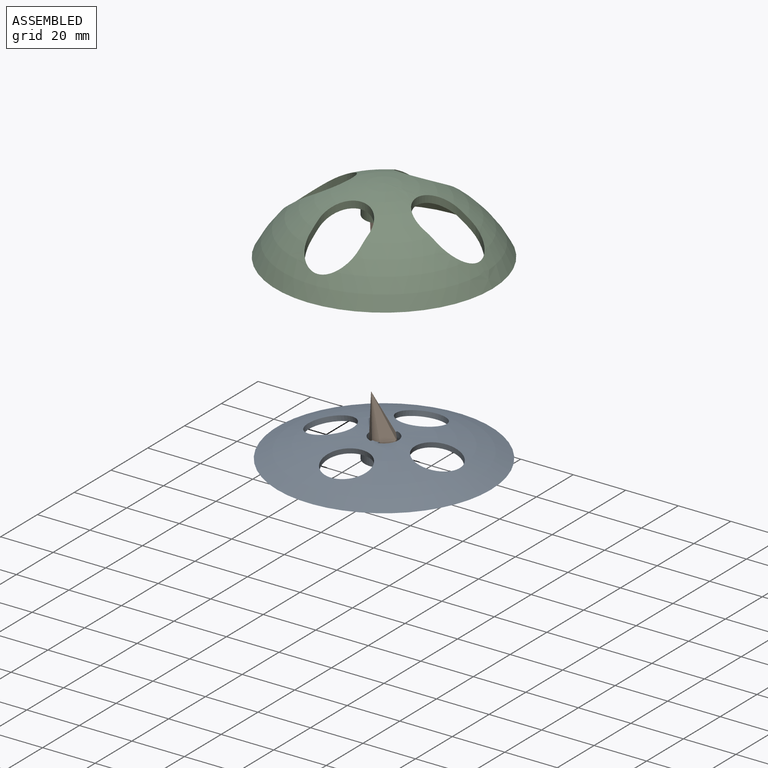
[diagram: assembled view]
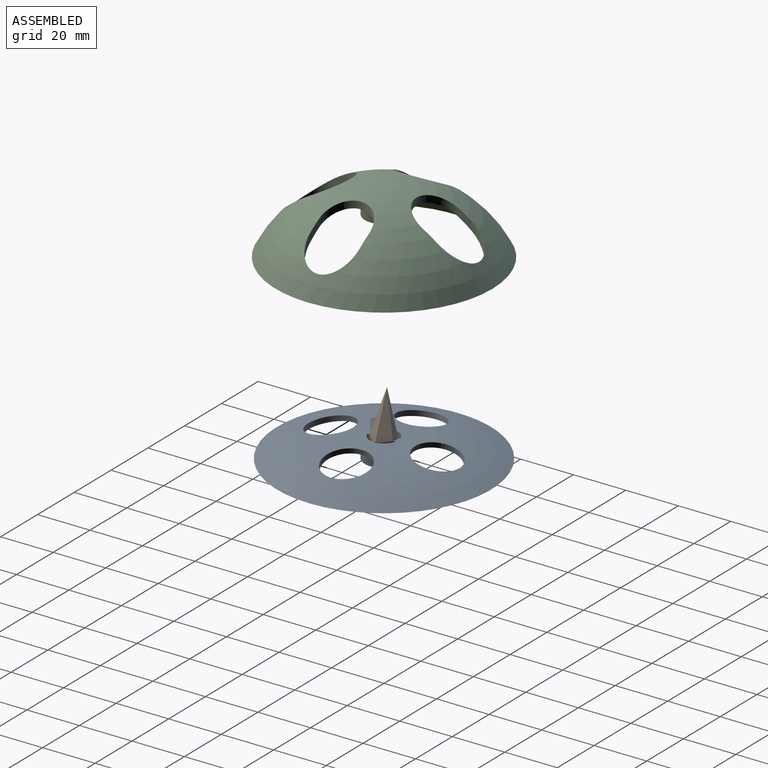
[diagram: assembled view, second angle]
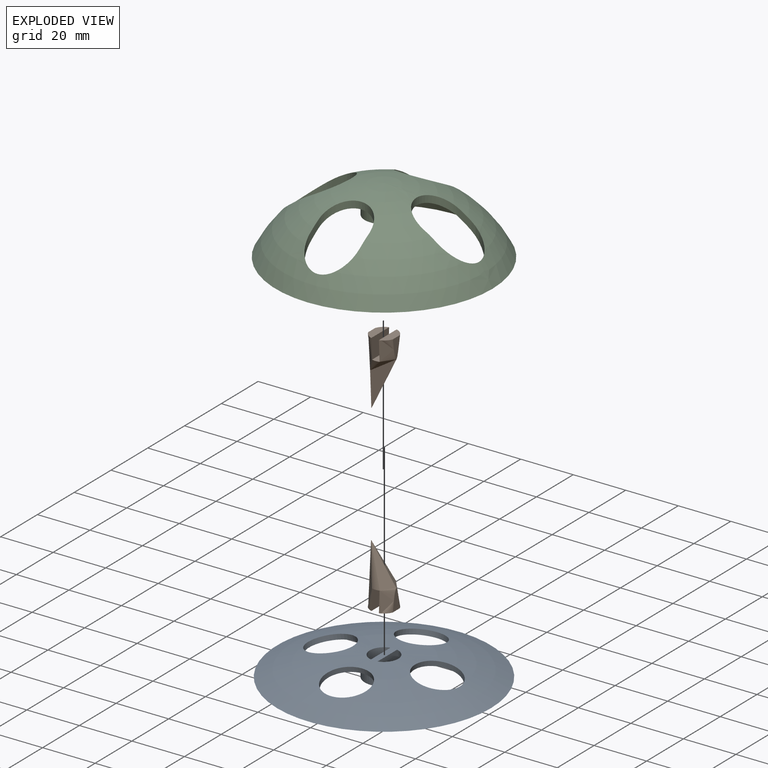
[diagram: exploded view]
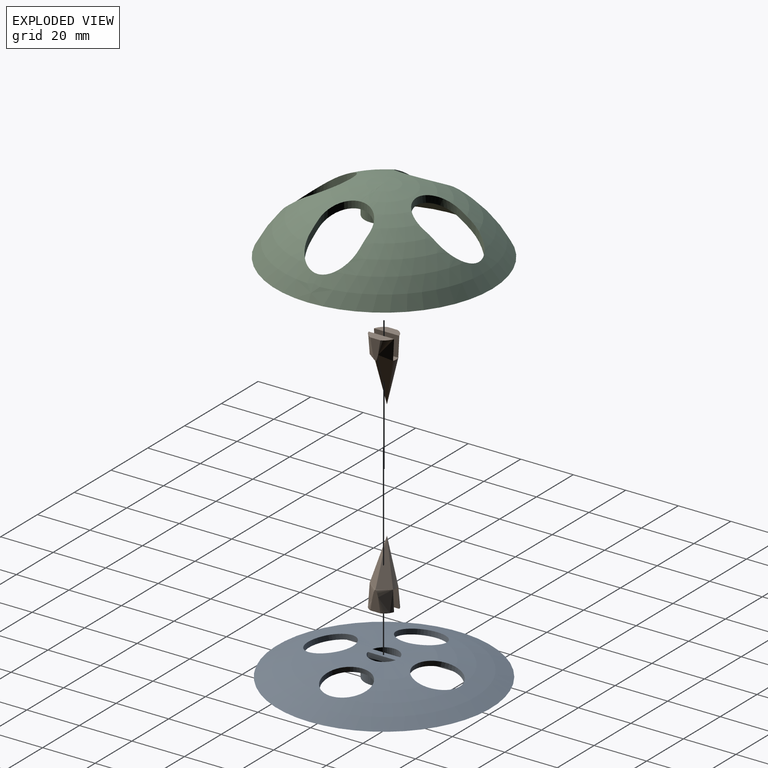
[diagram: exploded view, second angle]
ASSEMBLY  parts=3 mates=6
PART A: 14 faces, bbox 81.3x81.3x7.6 mm
  f0: torus R=5.44mm, axis (0,0,1), area 3032.6mm2, adj f2,f9,f10,f11,f12,f13
  f1: torus R=5.44mm, axis (0,0,1), area 4376.6mm2, adj f2,f3,f7,f10,f11,f12,f13
  f2: plane 81.28x81.28mm, normal (0,0,-1), area 1174.8mm2, adj f0,f1
  f3: plane 10.87x2.54mm, normal (0,0,1), area 27.4mm2, adj f1,f5,f6
  f4: plane 10.87x2.54mm, normal (0,0,-1), area 27.4mm2, adj f5,f6,f7
  f5: plane 10.57x1.91mm, normal (1,0,0), area 20.1mm2, adj f3,f4,f7
  f6: plane 10.57x1.91mm, normal (-1,0,0), area 20.1mm2, adj f3,f4,f7
  f7: cylinder r=5.44mm len=10.87mm, axis (0,0,-1), area 250.5mm2, adj f1,f4,f5,f6,f8
  f8: plane 14.68x14.68mm, normal (0,0,-1), area 76.5mm2, adj f7,f9
  f9: cylinder r=7.34mm len=14.68mm, axis (0,0,-1), area 262.6mm2, adj f0,f8
  f10: cylinder r=8.64mm len=17.36mm, axis (-0.17,0,-0.98), area 103.8mm2, adj f0,f1
  f11: cylinder r=8.64mm len=17.34mm, axis (0,-0.17,-0.98), area 103.6mm2, adj f0,f1
  f12: cylinder r=8.64mm len=17.37mm, axis (0.17,0,-0.98), area 103.8mm2, adj f0,f1
  f13: cylinder r=8.64mm len=17.37mm, axis (0,0.17,-0.98), area 103.8mm2, adj f0,f1
PART B: 15 faces, bbox 571.9x571.9x1274.9 mm
  f0: plane 9.35x2.87mm, normal (0,0,-1), area 26.4mm2, adj f2,f11,f13
  f1: plane 9.35x2.87mm, normal (0,0,1), area 26.4mm2, adj f2,f4,f8
  f2: torus R=901.65mm, axis (0,0,-1), area 2327.6mm2, adj f0,f1,f3,f4,f5,f6,f7,f8
  f3: plane 9.66x3.24mm, normal (0,0,1), area 24.7mm2, adj f2,f4,f5
  f4: plane 9.67x7.62mm, normal (1,0,0), area 70.6mm2, adj f1,f2,f3
  f5: plane 7.62x3.78mm, normal (-1,0,0), area 18.8mm2, adj f2,f3
  f6: plane 9.66x3.24mm, normal (0,0,1), area 24.7mm2, adj f2,f7,f8
  f7: plane 7.62x3.78mm, normal (1,0,0), area 18.8mm2, adj f2,f6
  f8: plane 9.67x7.62mm, normal (-1,0,0), area 70.6mm2, adj f1,f2,f6
  f9: plane 9.66x3.24mm, normal (0,0,-1), area 24.7mm2, adj f2,f10,f11
  f10: plane 7.62x3.78mm, normal (-1,0,0), area 18.8mm2, adj f2,f9
  f11: plane 9.67x7.62mm, normal (1,0,0), area 70.6mm2, adj f0,f2,f9
  f12: plane 9.66x3.24mm, normal (0,0,-1), area 24.7mm2, adj f2,f13,f14
  f13: plane 9.67x7.62mm, normal (-1,0,0), area 70.6mm2, adj f0,f2,f12
  f14: plane 7.62x3.78mm, normal (1,0,0), area 18.8mm2, adj f2,f12
PART C: 27 faces, bbox 82.7x82.7x25.6 mm
  f0: plane 6.48x4.91mm, normal (-1,0,0), area 14.8mm2, adj f1,f3,f12,f13
  f1: cylinder r=9.53mm len=19.05mm, axis (0,0,-1), area 82.7mm2, adj f0,f2,f12,f13
  f2: plane 6.48x4.91mm, normal (1,0,0), area 14.8mm2, adj f1,f3,f12,f13
  f3: cylinder r=9.53mm len=19.05mm, axis (0,0,-1), area 115.5mm2, adj f0,f2,f12,f13
  f4: plane 6.48x4.91mm, normal (0,1,0), area 14.8mm2, adj f5,f7,f12,f13
  f5: cylinder r=9.53mm len=19.05mm, axis (0,0,-1), area 82.7mm2, adj f4,f6,f12,f13
  f6: plane 6.48x4.91mm, normal (0,-1,0), area 14.8mm2, adj f5,f7,f12,f13
  f7: cylinder r=9.53mm len=19.05mm, axis (0,0,-1), area 115.5mm2, adj f4,f6,f12,f13
  f8: plane 6.48x4.91mm, normal (1,0,0), area 14.8mm2, adj f9,f11,f12,f13
  f9: cylinder r=9.53mm len=19.05mm, axis (0,0,-1), area 82.7mm2, adj f8,f10,f12,f13
  f10: plane 6.48x4.91mm, normal (-1,0,0), area 14.8mm2, adj f9,f11,f12,f13
  f11: cylinder r=9.53mm len=19.05mm, axis (0,0,-1), area 115.5mm2, adj f8,f10,f12,f13
  f12: sphere r=43.7mm, area 4209.8mm2, adj f0,f1,f2,f3,f4,f5,f6,f7
  f13: sphere r=46.24mm, area 5547.7mm2, adj f0,f1,f2,f3,f4,f5,f6,f7
  f14: plane 82.55x82.55mm, normal (0,0,-1), area 717.6mm2, adj f12,f13
  f15: plane 14.68x14.68mm, normal (0,0,-1), area 76.5mm2, adj f16,f22
  f16: cylinder r=7.34mm len=14.68mm, axis (0,0,-1), area 352.1mm2, adj f12,f15
  f17: plane 10.57x4.17mm, normal (0,0,-1), area 32.7mm2, adj f18,f22
  f18: plane 10.57x2.12mm, normal (1,0,0), area 20.1mm2, adj f17,f20,f22
  f19: plane 10.57x4.17mm, normal (0,0,-1), area 32.7mm2, adj f21,f22
  f20: sphere r=43.7mm, area 27.4mm2, adj f18,f21,f22
  f21: plane 10.57x2.12mm, normal (-1,0,0), area 20.1mm2, adj f19,f20,f22
  f22: cylinder r=5.44mm len=10.87mm, axis (0,0,-1), area 331.8mm2, adj f15,f17,f18,f19,f20,f21
  f23: plane 6.48x4.91mm, normal (0,-1,0), area 14.8mm2, adj f12,f13,f24,f26
  f24: cylinder r=9.53mm len=19.05mm, axis (0,0,-1), area 82.7mm2, adj f12,f13,f23,f25
  f25: plane 6.48x4.91mm, normal (0,1,0), area 14.8mm2, adj f12,f13,f24,f26
  f26: cylinder r=9.53mm len=19.05mm, axis (0,0,-1), area 115.6mm2, adj f12,f13,f23,f25
PLACE A at identity fixed
PLACE B t=(0,0,46.99)mm
PLACE C t=(0,0,69.34)mm
MATE planar B.f2 <-> A.f9  axis (0,0,-1) through (0,0,7.62)mm
MATE planar B.f3 <-> C.f17  axis (0,0,1) through (-2.86,0,93.98)mm
MATE cylindrical C.f22 <-> B.f2  axis (0,0,-1) through (0,0,88.96)mm
MATE parallel A.f5 <-> B.f13  axis (1,0,0) through (1.27,0,6.67)mm
MATE parallel B.f11 <-> C.f2  axis (1,0,0) through (-1.44,0,0)mm
MATE cylindrical A.f7 <-> B.f2  axis (0,0,-1) through (0,0,3.81)mm
